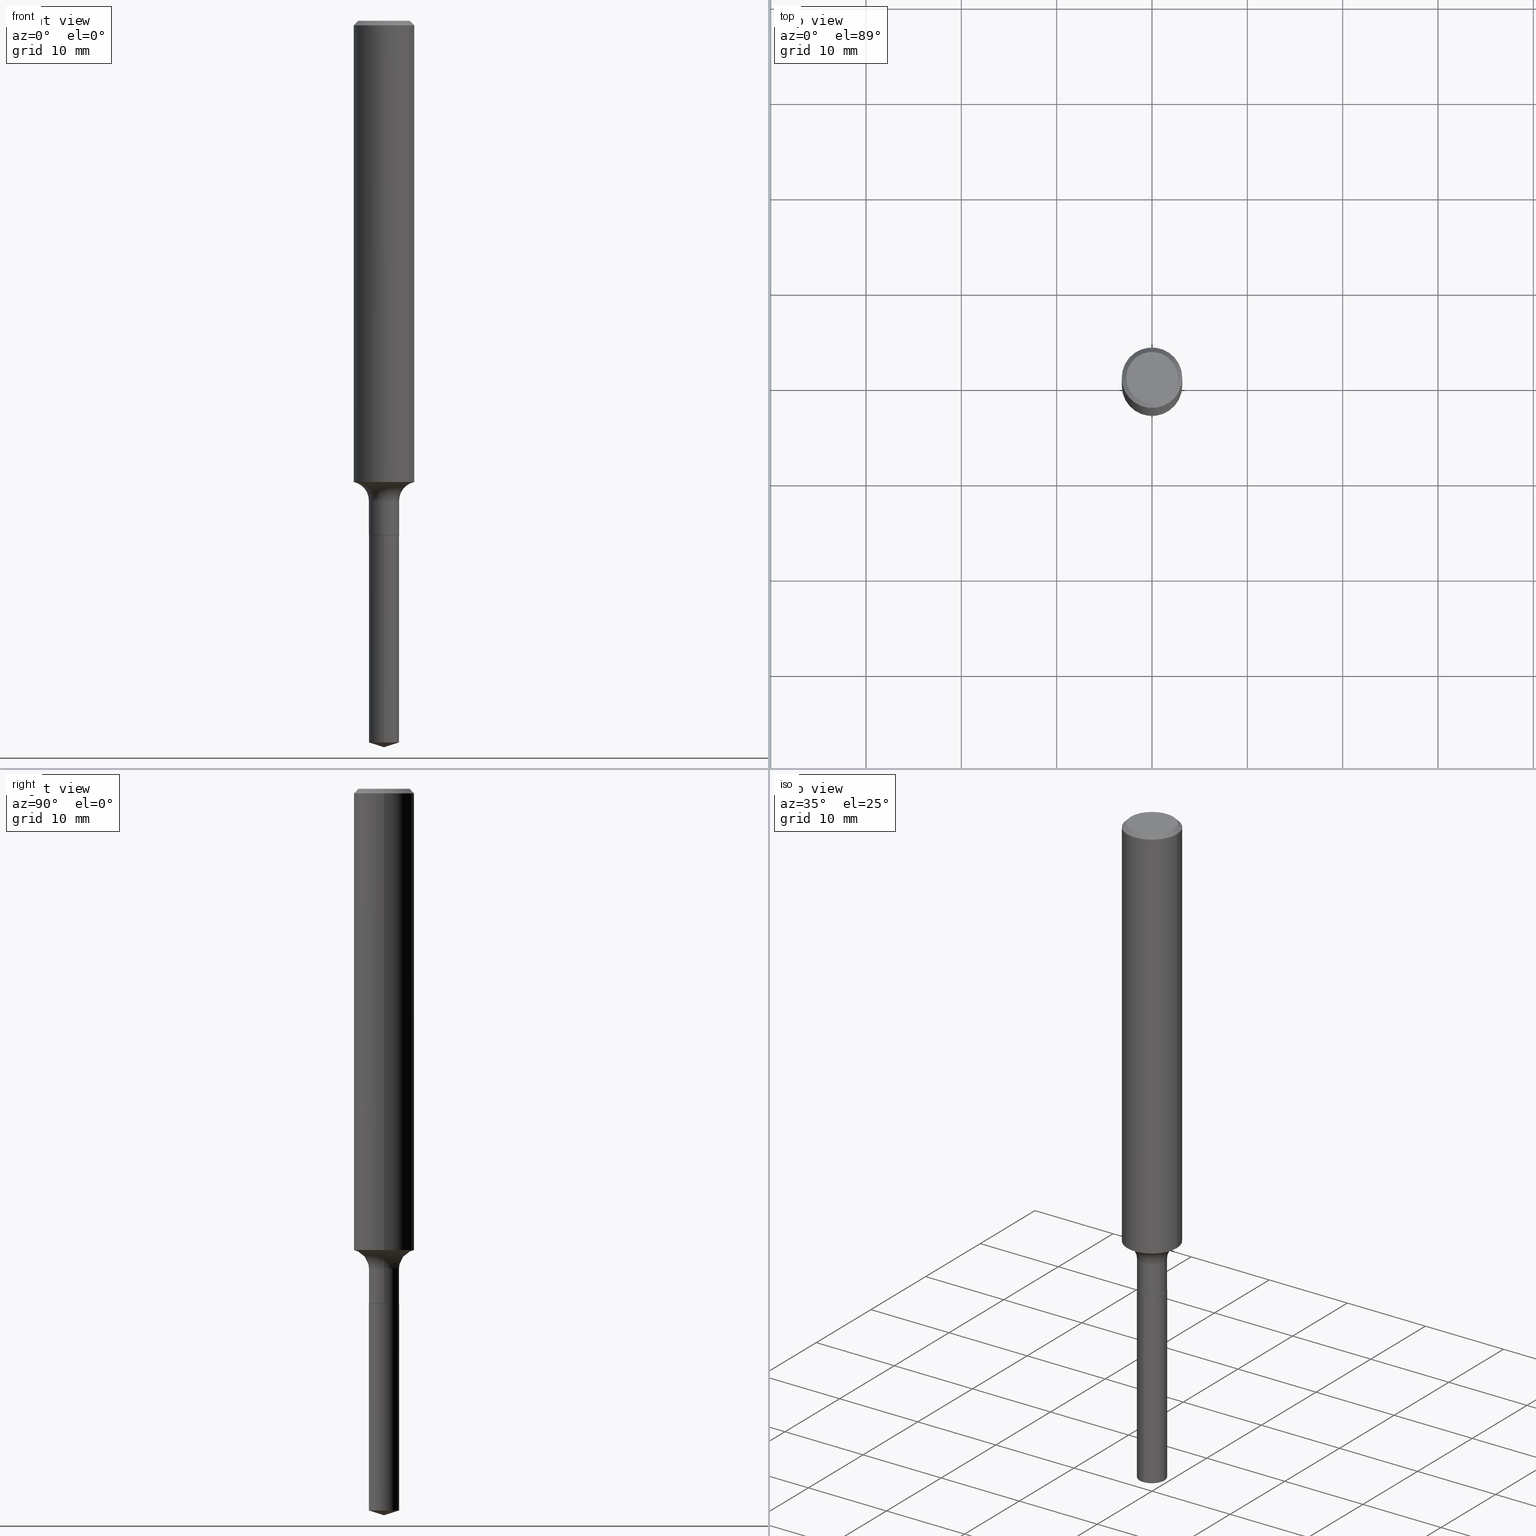
[diagram: canonical four-view strip — front | top / right | iso, engineering-drawing reading convention]
A machine part, canonical four-view strip (front | top / right | iso — engineering-drawing reading convention). The complete STEP part file that produces these views, byte-faithful:
ISO-10303-21;
HEADER;
FILE_DESCRIPTION (( 'STEP AP203' ),
    '1' );
FILE_NAME ('51580.STEP',
    '2024-04-19T13:02:12',
    ( '' ),
    ( '' ),
    'SwSTEP 2.0',
    'SolidWorks 2023',
    '' );
FILE_SCHEMA (( 'CONFIG_CONTROL_DESIGN' ));
ENDSEC;

DATA;
#1 = ADVANCED_FACE ( 'NONE', ( #32 ), #400, .T. ) ;
#2 = CARTESIAN_POINT ( 'NONE',  ( -0.1250000000000000833, -5.762240128063631559E-15, -1.904755575742896889 ) ) ;
#3 = APPROVAL_PERSON_ORGANIZATION ( #45, #385, #248 ) ;
#4 = CARTESIAN_POINT ( 'NONE',  ( 0.1250000000000000000, -9.230275248247509846E-16, -0.01875000000000014155 ) ) ;
#5 = ORIENTED_EDGE ( 'NONE', *, *, #309, .F. ) ;
#6 = CARTESIAN_POINT ( 'NONE',  ( -0.06249999999999993061, 4.440892098500621231E-16, -3.074334431409312610E-30 ) ) ;
#7 = ORIENTED_EDGE ( 'NONE', *, *, #344, .F. ) ;
#8 = EDGE_CURVE ( 'NONE', #247, #123, #18, .T. ) ;
#9 = CARTESIAN_POINT ( 'NONE',  ( -0.06249999999999995143, -6.723398256594090548E-15, -2.124500000000000721 ) ) ;
#10 = EDGE_LOOP ( 'NONE', ( #350, #40, #87, #262 ) ) ;
#11 = ADVANCED_FACE ( 'NONE', ( #441 ), #183, .T. ) ;
#12 = AXIS2_PLACEMENT_3D ( 'NONE', #220, #25, #57 ) ;
#13 = CARTESIAN_POINT ( 'NONE',  ( 0.1250000000000000000, -9.383356098140928781E-16, -0.01875000000000014155 ) ) ;
#14 = EDGE_LOOP ( 'NONE', ( #138, #166, #284, #460 ) ) ;
#15 = ORIENTED_EDGE ( 'NONE', *, *, #179, .T. ) ;
#16 = APPROVAL_STATUS ( 'not_yet_approved' ) ;
#17 = ADVANCED_FACE ( 'NONE', ( #226 ), #487, .T. ) ;
#18 = CIRCLE ( 'NONE', #435, 0.06249999999999991673 ) ;
#19 = AXIS2_PLACEMENT_3D ( 'NONE', #260, #293, #324 ) ;
#20 = DIRECTION ( 'NONE',  ( 1.000000000000000000, -6.982962677686266711E-15, 0.000000000000000000 ) ) ;
#21 = FACE_OUTER_BOUND ( 'NONE', #131, .T. ) ;
#22 = DIRECTION ( 'NONE',  ( 1.000000000000000000, -6.982962677686268288E-15, 0.000000000000000000 ) ) ;
#23 = CONICAL_SURFACE ( 'NONE', #317, 0.1250000000000000000, 0.7853981633974453924 ) ;
#24 = AXIS2_PLACEMENT_3D ( 'NONE', #440, #484, #446 ) ;
#25 = DIRECTION ( 'NONE',  ( 2.432315252734916185E-29, -3.510317976037629950E-15, -1.000000000000000000 ) ) ;
#26 = LINE ( 'NONE', #398, #202 ) ;
#27 = ADVANCED_FACE ( 'NONE', ( #190 ), #149, .T. ) ;
#28 = PERSON ( 'UNSPECIFIED', 'UNSPECIFIED', 'UNSPECIFIED', ('UNSPECIFIED'), ('UNSPECIFIED'), ('UNSPECIFIED') ) ;
#29 = CARTESIAN_POINT ( 'NONE',  ( 7.276965430951519486E-29, -1.042175113617306376E-14, -2.980293825695064402 ) ) ;
#30 = ORIENTED_EDGE ( 'NONE', *, *, #8, .F. ) ;
#31 = CIRCLE ( 'NONE', #436, 0.06249999999999995143 ) ;
#32 = FACE_OUTER_BOUND ( 'NONE', #288, .T. ) ;
#33 = LENGTH_MEASURE_WITH_UNIT ( LENGTH_MEASURE( 0.02539999999999999897 ), #124 );
#34 = CARTESIAN_POINT ( 'NONE',  ( 5.196621213143416389E-29, -7.419397845041685201E-15, -2.125000000000000444 ) ) ;
#35 = DIRECTION ( 'NONE',  ( -6.982962677686266711E-15, -1.000000000000000000, 0.000000000000000000 ) ) ;
#36 = DIRECTION ( 'NONE',  ( 1.000000000000000000, -6.982962677686269077E-15, 0.000000000000000000 ) ) ;
#37 = ORIENTED_EDGE ( 'NONE', *, *, #198, .T. ) ;
#38 = AXIS2_PLACEMENT_3D ( 'NONE', #310, #303, #453 ) ;
#39 = CONICAL_SURFACE ( 'NONE', #354, 124.8659371009182735, 1.265363707695899009 ) ;
#40 = ORIENTED_EDGE ( 'NONE', *, *, #264, .T. ) ;
#41 = PERSON_AND_ORGANIZATION ( #28, #445 ) ;
#42 = LINE ( 'NONE', #165, #72 ) ;
#43 = ORIENTED_EDGE ( 'NONE', *, *, #301, .T. ) ;
#44 = ADVANCED_FACE ( 'NONE', ( #485 ), #23, .T. ) ;
#45 = PERSON_AND_ORGANIZATION ( #28, #445 ) ;
#46 = ADVANCED_FACE ( 'NONE', ( #399 ), #141, .F. ) ;
#47 = DIRECTION ( 'NONE',  ( -6.982962677686265922E-15, -1.000000000000000000, 4.370956789862820361E-15 ) ) ;
#48 = ORIENTED_EDGE ( 'NONE', *, *, #85, .T. ) ;
#49 = APPROVAL_ROLE ( '' ) ;
#50 = CC_DESIGN_PERSON_AND_ORGANIZATION_ASSIGNMENT ( #281, #475, ( #332 ) ) ;
#51 = AXIS2_PLACEMENT_3D ( 'NONE', #459, #199, #340 ) ;
#52 = ADVANCED_FACE ( 'NONE', ( #492 ), #363, .T. ) ;
#53 = AXIS2_PLACEMENT_3D ( 'NONE', #329, #298, #302 ) ;
#54 = ORIENTED_EDGE ( 'NONE', *, *, #287, .T. ) ;
#55 = APPROVAL_DATE_TIME ( #277, #385 ) ;
#56 = EDGE_LOOP ( 'NONE', ( #404, #135, #352 ) ) ;
#57 = DIRECTION ( 'NONE',  ( 6.982962677686265922E-15, 1.000000000000000000, -3.510317976037629950E-15 ) ) ;
#58 = CIRCLE ( 'NONE', #299, 0.1250000000000000000 ) ;
#59 = AXIS2_PLACEMENT_3D ( 'NONE', #295, #358, #481 ) ;
#60 = EDGE_CURVE ( 'NONE', #490, #133, #450, .T. ) ;
#61 = CARTESIAN_POINT ( 'NONE',  ( 0.1404999999999999027, -7.898429084730959980E-15, -1.981200000000000072 ) ) ;
#62 = DIRECTION ( 'NONE',  ( 1.000000000000000000, -6.982962677686261977E-15, 0.000000000000000000 ) ) ;
#63 = CYLINDRICAL_SURFACE ( 'NONE', #429, 0.06250000000000002776 ) ;
#64 = AXIS2_PLACEMENT_3D ( 'NONE', #121, #272, #157 ) ;
#65 = LOCAL_TIME ( 9, 2, 12.00000000000000000, #418 ) ;
#66 = FACE_OUTER_BOUND ( 'NONE', #240, .T. ) ;
#67 = DIRECTION ( 'NONE',  ( -2.445468806185136597E-29, 3.491481338843145583E-15, 1.000000000000000000 ) ) ;
#68 = CARTESIAN_POINT ( 'NONE',  ( 5.196621213143416389E-29, -7.419397845041685201E-15, -2.125000000000000444 ) ) ;
#69 = DIRECTION ( 'NONE',  ( 1.000000000000000000, -6.982962677686272233E-15, 0.000000000000000000 ) ) ;
#70 = PERSON_AND_ORGANIZATION_ROLE ( 'design_owner' ) ;
#71 = DIRECTION ( 'NONE',  ( -1.000000000000000000, 6.982962677686266711E-15, 0.000000000000000000 ) ) ;
#72 = VECTOR ( 'NONE', #465, 39.37007874015748143 ) ;
#73 = CONICAL_SURFACE ( 'NONE', #53, 0.06200000000000001343, 0.7853981633974824739 ) ;
#74 = EDGE_CURVE ( 'NONE', #251, #273, #75, .T. ) ;
#75 = LINE ( 'NONE', #230, #394 ) ;
#76 = DIRECTION ( 'NONE',  ( 1.000000000000000000, -6.982962677686266711E-15, 4.876176775795935793E-29 ) ) ;
#77 = ORIENTED_EDGE ( 'NONE', *, *, #256, .F. ) ;
#78 = DESIGN_CONTEXT ( 'detailed design', #357, 'design' ) ;
#79 = ADVANCED_BREP_SHAPE_REPRESENTATION ( '51580', ( #478, #308, #177 ), #401 ) ;
#80 = DIRECTION ( 'NONE',  ( 1.000000000000000000, -6.982962677686266711E-15, 0.000000000000000000 ) ) ;
#81 = ORIENTED_EDGE ( 'NONE', *, *, #264, .F. ) ;
#82 = DATE_TIME_ROLE ( 'creation_date' ) ;
#83 = VECTOR ( 'NONE', #432, 39.37007874015748854 ) ;
#84 = CC_DESIGN_APPROVAL ( #373, ( #332 ) ) ;
#85 = EDGE_CURVE ( 'NONE', #457, #103, #192, .T. ) ;
#86 = CARTESIAN_POINT ( 'NONE',  ( 4.658020343886464601E-29, -6.650418547763756792E-15, -1.904755575742896889 ) ) ;
#87 = ORIENTED_EDGE ( 'NONE', *, *, #335, .T. ) ;
#88 = DIRECTION ( 'NONE',  ( -2.445468806185136877E-29, 3.491481338843145188E-15, 1.000000000000000000 ) ) ;
#89 = ORIENTED_EDGE ( 'NONE', *, *, #106, .T. ) ;
#90 = APPROVAL_ROLE ( '' ) ;
#91 = ORIENTED_EDGE ( 'NONE', *, *, #270, .F. ) ;
#92 = CALENDAR_DATE ( 2024, 19, 4 ) ;
#93 = VECTOR ( 'NONE', #491, 39.37007874015748143 ) ;
#94 = VERTEX_POINT ( 'NONE', #300 ) ;
#95 = CALENDAR_DATE ( 2024, 19, 4 ) ;
#96 = ORIENTED_EDGE ( 'NONE', *, *, #301, .F. ) ;
#97 = LINE ( 'NONE', #6, #462 ) ;
#98 = CC_DESIGN_PERSON_AND_ORGANIZATION_ASSIGNMENT ( #112, #70, ( #153 ) ) ;
#99 = DIRECTION ( 'NONE',  ( -2.445468806185136597E-29, 3.491481338843145583E-15, 1.000000000000000000 ) ) ;
#100 = AXIS2_PLACEMENT_3D ( 'NONE', #269, #265, #408 ) ;
#101 = CIRCLE ( 'NONE', #24, 0.1062499999999999972 ) ;
#102 = CARTESIAN_POINT ( 'NONE',  ( 5.196621213143416389E-29, -7.419397845041685201E-15, -2.125000000000000444 ) ) ;
#103 = VERTEX_POINT ( 'NONE', #337 ) ;
#104 = DIRECTION ( 'NONE',  ( -2.432315252734916185E-29, 3.510317976037630345E-15, 1.000000000000000000 ) ) ;
#105 = CARTESIAN_POINT ( 'NONE',  ( -8.843554596177323907E-28, 1.277105690455171332E-13, 36.37007874015748143 ) ) ;
#106 = EDGE_CURVE ( 'NONE', #214, #273, #58, .T. ) ;
#107 = DIRECTION ( 'NONE',  ( -2.432315252734916185E-29, 3.510317976037629950E-15, 1.000000000000000000 ) ) ;
#108 = AXIS2_PLACEMENT_3D ( 'NONE', #203, #125, #47 ) ;
#109 = DIRECTION ( 'NONE',  ( 2.445468806185136597E-29, -3.491481338843145583E-15, -1.000000000000000000 ) ) ;
#110 = CARTESIAN_POINT ( 'NONE',  ( 4.585254011597165626E-31, -6.546527510330947764E-17, -0.01875000000000014155 ) ) ;
#111 = DIRECTION ( 'NONE',  ( -2.432315252734916185E-29, 3.510317976037630345E-15, 1.000000000000000000 ) ) ;
#112 = PERSON_AND_ORGANIZATION ( #28, #445 ) ;
#113 = APPROVAL ( #207, 'UNSPECIFIED' ) ;
#114 = DIRECTION ( 'NONE',  ( 2.445468806185136597E-29, -3.491481338843145583E-15, -1.000000000000000000 ) ) ;
#115 = EDGE_CURVE ( 'NONE', #103, #457, #167, .T. ) ;
#116 = CARTESIAN_POINT ( 'NONE',  ( -4.364351673553397525E-16, -0.06250000000000743849, -2.125000000000000000 ) ) ;
#117 = CARTESIAN_POINT ( 'NONE',  ( -0.06200000000000001343, -6.978861348870422695E-15, -2.125000000000000444 ) ) ;
#118 = CIRCLE ( 'NONE', #386, 0.1250000000000000000 ) ;
#119 = CC_DESIGN_APPROVAL ( #113, ( #339 ) ) ;
#120 = PLANE ( 'NONE',  #137 ) ;
#121 = CARTESIAN_POINT ( 'NONE',  ( 5.196621213143416389E-29, -7.419397845041685201E-15, -2.125000000000000444 ) ) ;
#122 = ORIENTED_EDGE ( 'NONE', *, *, #477, .T. ) ;
#123 = VERTEX_POINT ( 'NONE', #208 ) ;
#124 =( LENGTH_UNIT ( ) NAMED_UNIT ( * ) SI_UNIT ( $, .METRE. ) );
#125 = DIRECTION ( 'NONE',  ( -2.432315252734916185E-29, 3.510317976037630345E-15, 1.000000000000000000 ) ) ;
#126 = EDGE_LOOP ( 'NONE', ( #77, #81 ) ) ;
#127 = DATE_AND_TIME ( #136, #142 ) ;
#128 = DIRECTION ( 'NONE',  ( -2.445468806185136597E-29, 3.491481338843145583E-15, 1.000000000000000000 ) ) ;
#129 = ORIENTED_EDGE ( 'NONE', *, *, #194, .F. ) ;
#130 = COORDINATED_UNIVERSAL_TIME_OFFSET ( 5, 0, .BEHIND. ) ;
#131 = EDGE_LOOP ( 'NONE', ( #48, #343 ) ) ;
#132 = DIRECTION ( 'NONE',  ( 1.000000000000000000, -6.982962677686272233E-15, 0.000000000000000000 ) ) ;
#133 = VERTEX_POINT ( 'NONE', #9 ) ;
#134 = ORIENTED_EDGE ( 'NONE', *, *, #8, .T. ) ;
#135 = ORIENTED_EDGE ( 'NONE', *, *, #403, .T. ) ;
#136 = CALENDAR_DATE ( 2024, 19, 4 ) ;
#137 = AXIS2_PLACEMENT_3D ( 'NONE', #68, #154, #414 ) ;
#138 = ORIENTED_EDGE ( 'NONE', *, *, #170, .F. ) ;
#139 = LINE ( 'NONE', #146, #483 ) ;
#140 = CARTESIAN_POINT ( 'NONE',  ( -4.364351673553398018E-16, -0.06250000000000743849, -2.125000000000000000 ) ) ;
#141 = TOROIDAL_SURFACE ( 'NONE', #176, 0.1404999999999999027, 0.07799999999999995826 ) ;
#142 = LOCAL_TIME ( 9, 2, 12.00000000000000000, #242 ) ;
#143 = CC_DESIGN_PERSON_AND_ORGANIZATION_ASSIGNMENT ( #238, #351, ( #339 ) ) ;
#144 = DIRECTION ( 'NONE',  ( -2.445468806185136597E-29, 3.491481338843145583E-15, 1.000000000000000000 ) ) ;
#145 = DIRECTION ( 'NONE',  ( -6.982962677686265922E-15, -1.000000000000000000, 4.370956789862820361E-15 ) ) ;
#146 = CARTESIAN_POINT ( 'NONE',  ( 0.06200000000000001343, -7.852341531058233864E-15, -2.125000000000000444 ) ) ;
#147 = DIRECTION ( 'NONE',  ( -2.445468806185136597E-29, 3.491481338843145583E-15, 1.000000000000000000 ) ) ;
#148 = CARTESIAN_POINT ( 'NONE',  ( 0.06200000000000001343, -7.852341531058233864E-15, -2.125000000000000444 ) ) ;
#149 = CONICAL_SURFACE ( 'NONE', #444, 0.06200000000000001343, 0.7853981633974824739 ) ;
#150 = DIRECTION ( 'NONE',  ( -2.445468806185136597E-29, 3.491481338843145583E-15, 1.000000000000000000 ) ) ;
#151 = AXIS2_PLACEMENT_3D ( 'NONE', #449, #156, #370 ) ;
#152 =( NAMED_UNIT ( * ) PLANE_ANGLE_UNIT ( ) SI_UNIT ( $, .RADIAN. ) );
#153 = PRODUCT ( '51580', '51580', '', ( #447 ) ) ;
#154 = DIRECTION ( 'NONE',  ( -2.438088387897960049E-29, 3.491481338843145188E-15, 1.000000000000000000 ) ) ;
#155 = DIRECTION ( 'NONE',  ( 1.000000000000000000, -6.982962677686268288E-15, 4.883557194083113462E-29 ) ) ;
#156 = DIRECTION ( 'NONE',  ( -2.445468806185136597E-29, 3.491481338843145583E-15, 1.000000000000000000 ) ) ;
#157 = DIRECTION ( 'NONE',  ( 1.000000000000000000, -6.982962677686269077E-15, 0.000000000000000000 ) ) ;
#158 = AXIS2_PLACEMENT_3D ( 'NONE', #29, #451, #35 ) ;
#159 = CARTESIAN_POINT ( 'NONE',  ( 0.1250000000000000833, -7.523288882474540130E-15, -1.904755575742896889 ) ) ;
#160 = ORIENTED_EDGE ( 'NONE', *, *, #256, .T. ) ;
#161 = DIRECTION ( 'NONE',  ( -6.982962677686265922E-15, -1.000000000000000000, 4.370956789862819572E-15 ) ) ;
#162 = LINE ( 'NONE', #342, #285 ) ;
#163 = VERTEX_POINT ( 'NONE', #169 ) ;
#164 = APPROVAL_DATE_TIME ( #391, #113 ) ;
#165 = CARTESIAN_POINT ( 'NONE',  ( 4.440892098501146810E-16, 0.06249999999999260314, -2.125000000000000888 ) ) ;
#166 = ORIENTED_EDGE ( 'NONE', *, *, #331, .T. ) ;
#167 = CIRCLE ( 'NONE', #108, 0.06250000000000001388 ) ;
#168 = AXIS2_PLACEMENT_3D ( 'NONE', #364, #333, #161 ) ;
#169 = CARTESIAN_POINT ( 'NONE',  ( 0.06249999999999995143, -7.854087271727656156E-15, -2.124500000000000721 ) ) ;
#170 = EDGE_CURVE ( 'NONE', #306, #103, #42, .T. ) ;
#171 = ORIENTED_EDGE ( 'NONE', *, *, #74, .T. ) ;
#172 = EDGE_LOOP ( 'NONE', ( #388, #37, #390 ) ) ;
#173 = APPROVAL_STATUS ( 'not_yet_approved' ) ;
#174 = DIMENSIONAL_EXPONENTS ( 1.000000000000000000, 0.000000000000000000, 0.000000000000000000, 0.000000000000000000, 0.000000000000000000, 0.000000000000000000, 0.000000000000000000 ) ;
#175 = APPROVAL_DATE_TIME ( #424, #373 ) ;
#176 = AXIS2_PLACEMENT_3D ( 'NONE', #328, #147, #155 ) ;
#177 = AXIS2_PLACEMENT_3D ( 'NONE', #407, #412, #338 ) ;
#178 = APPLICATION_CONTEXT ( 'configuration controlled 3d designs of mechanical parts and assemblies' ) ;
#179 = EDGE_CURVE ( 'NONE', #133, #163, #224, .T. ) ;
#180 = DIRECTION ( 'NONE',  ( -2.445468806185136877E-29, 3.491481338843145188E-15, 1.000000000000000000 ) ) ;
#181 = CARTESIAN_POINT ( 'NONE',  ( 0.1062499999999999972, -8.259777185439880671E-16, -2.602374448187577153E-17 ) ) ;
#182 = DIRECTION ( 'NONE',  ( -2.445468806185136597E-29, 3.491481338843145583E-15, 1.000000000000000000 ) ) ;
#183 = CONICAL_SURFACE ( 'NONE', #330, 124.8659371009182735, 1.265363707695899009 ) ;
#184 = CC_DESIGN_PERSON_AND_ORGANIZATION_ASSIGNMENT ( #473, #318, ( #339 ) ) ;
#185 = CC_DESIGN_SECURITY_CLASSIFICATION ( #332, ( #339 ) ) ;
#186 = DIRECTION ( 'NONE',  ( -6.982962677686265922E-15, -1.000000000000000000, 4.370956789862819572E-15 ) ) ;
#187 = DIRECTION ( 'NONE',  ( -1.000000000000000000, 6.982962677686266711E-15, 0.000000000000000000 ) ) ;
#188 = ADVANCED_FACE ( 'NONE', ( #279 ), #393, .T. ) ;
#189 = DIRECTION ( 'NONE',  ( -6.659769872151647866E-15, -0.9537169507482289310, 0.3007057995042668463 ) ) ;
#190 = FACE_OUTER_BOUND ( 'NONE', #347, .T. ) ;
#191 = CARTESIAN_POINT ( 'NONE',  ( 0.06249999999999993061, -4.364351673553911764E-16, 3.047610484872456367E-30 ) ) ;
#192 = CIRCLE ( 'NONE', #261, 0.06250000000000001388 ) ;
#193 = CIRCLE ( 'NONE', #377, 0.07799999999999995826 ) ;
#194 = EDGE_CURVE ( 'NONE', #133, #247, #97, .T. ) ;
#195 = CARTESIAN_POINT ( 'NONE',  ( 5.196621213143416389E-29, -7.419397845041685201E-15, -2.125000000000000444 ) ) ;
#196 = CC_DESIGN_DATE_AND_TIME_ASSIGNMENT ( #389, #211, ( #332 ) ) ;
#197 = DIRECTION ( 'NONE',  ( -2.445468806185136597E-29, 3.491481338843145583E-15, 1.000000000000000000 ) ) ;
#198 = EDGE_CURVE ( 'NONE', #213, #306, #252, .T. ) ;
#199 = DIRECTION ( 'NONE',  ( -2.445468806185136597E-29, 3.491481338843145583E-15, 1.000000000000000000 ) ) ;
#200 = VECTOR ( 'NONE', #346, 39.37007874015748143 ) ;
#201 = VERTEX_POINT ( 'NONE', #159 ) ;
#202 = VECTOR ( 'NONE', #189, 39.37007874015748854 ) ;
#203 = CARTESIAN_POINT ( 'NONE',  ( 5.196621213143416389E-29, -7.419397845041685201E-15, -2.125000000000000444 ) ) ;
#204 = ORIENTED_EDGE ( 'NONE', *, *, #366, .F. ) ;
#205 = CALENDAR_DATE ( 2024, 19, 4 ) ;
#206 = EDGE_LOOP ( 'NONE', ( #241, #253, #316, #470 ) ) ;
#207 = APPROVAL_STATUS ( 'not_yet_approved' ) ;
#208 = CARTESIAN_POINT ( 'NONE',  ( 0.06249999999999991673, -7.353757995871431934E-15, -1.981200000000000072 ) ) ;
#209 = ORIENTED_EDGE ( 'NONE', *, *, #464, .T. ) ;
#210 = CIRCLE ( 'NONE', #64, 0.06200000000000001343 ) ;
#211 = DATE_TIME_ROLE ( 'classification_date' ) ;
#212 = AXIS2_PLACEMENT_3D ( 'NONE', #402, #479, #255 ) ;
#213 = VERTEX_POINT ( 'NONE', #282 ) ;
#214 = VERTEX_POINT ( 'NONE', #13 ) ;
#215 = ORIENTED_EDGE ( 'NONE', *, *, #85, .F. ) ;
#216 = CALENDAR_DATE ( 2024, 19, 4 ) ;
#217 = EDGE_CURVE ( 'NONE', #123, #247, #353, .T. ) ;
#218 = EDGE_LOOP ( 'NONE', ( #129, #15, #209, #30 ) ) ;
#219 = CIRCLE ( 'NONE', #51, 0.1250000000000001943 ) ;
#220 = CARTESIAN_POINT ( 'NONE',  ( 5.196621213143416389E-29, -7.419397845041685201E-15, -2.125000000000000444 ) ) ;
#221 = PLANE ( 'NONE',  #12 ) ;
#222 = DIRECTION ( 'NONE',  ( -2.432315252734916185E-29, 3.510317976037630345E-15, 1.000000000000000000 ) ) ;
#223 = DIRECTION ( 'NONE',  ( -1.000000000000000000, 7.105427357601001859E-15, 0.000000000000000000 ) ) ;
#224 = CIRCLE ( 'NONE', #38, 0.06249999999999995143 ) ;
#225 = EDGE_CURVE ( 'NONE', #280, #214, #420, .T. ) ;
#226 = FACE_OUTER_BOUND ( 'NONE', #341, .T. ) ;
#227 = DIRECTION ( 'NONE',  ( 1.000000000000000000, -6.982962677686269077E-15, 0.000000000000000000 ) ) ;
#228 = AXIS2_PLACEMENT_3D ( 'NONE', #397, #294, #223 ) ;
#229 = CYLINDRICAL_SURFACE ( 'NONE', #168, 0.06250000000000002776 ) ;
#230 = CARTESIAN_POINT ( 'NONE',  ( -0.1250000000000001110, 8.881784197001260212E-16, -6.148668862818637832E-30 ) ) ;
#231 = FACE_OUTER_BOUND ( 'NONE', #10, .T. ) ;
#232 = CARTESIAN_POINT ( 'NONE',  ( 5.196621213143416389E-29, -7.419397845041685201E-15, -2.125000000000000444 ) ) ;
#233 = ORIENTED_EDGE ( 'NONE', *, *, #270, .T. ) ;
#234 = DIRECTION ( 'NONE',  ( 1.000000000000000000, -6.982962677686267499E-15, 0.000000000000000000 ) ) ;
#235 = AXIS2_PLACEMENT_3D ( 'NONE', #456, #416, #76 ) ;
#236 = ORIENTED_EDGE ( 'NONE', *, *, #309, .T. ) ;
#237 = LOCAL_TIME ( 9, 2, 12.00000000000000000, #315 ) ;
#238 = PERSON_AND_ORGANIZATION ( #28, #445 ) ;
#239 = PRODUCT_DEFINITION ( 'UNKNOWN', '', #339, #78 ) ;
#240 = EDGE_LOOP ( 'NONE', ( #122, #283, #215, #392 ) ) ;
#241 = ORIENTED_EDGE ( 'NONE', *, *, #366, .T. ) ;
#242 = COORDINATED_UNIVERSAL_TIME_OFFSET ( 5, 0, .BEHIND. ) ;
#243 = ORIENTED_EDGE ( 'NONE', *, *, #74, .F. ) ;
#244 = CIRCLE ( 'NONE', #228, 0.07799999999999995826 ) ;
#245 = VECTOR ( 'NONE', #180, 39.37007874015748143 ) ;
#246 = ORIENTED_EDGE ( 'NONE', *, *, #250, .T. ) ;
#247 = VERTEX_POINT ( 'NONE', #305 ) ;
#248 = APPROVAL_ROLE ( '' ) ;
#249 = PRODUCT_RELATED_PRODUCT_CATEGORY ( 'detail', '', ( #153 ) ) ;
#250 = EDGE_CURVE ( 'NONE', #201, #251, #322, .T. ) ;
#251 = VERTEX_POINT ( 'NONE', #2 ) ;
#252 = LINE ( 'NONE', #348, #83 ) ;
#253 = ORIENTED_EDGE ( 'NONE', *, *, #194, .T. ) ;
#254 = CIRCLE ( 'NONE', #268, 0.1062499999999999972 ) ;
#255 = DIRECTION ( 'NONE',  ( -6.982962677686266711E-15, -1.000000000000000000, 0.000000000000000000 ) ) ;
#256 = EDGE_CURVE ( 'NONE', #381, #490, #210, .T. ) ;
#257 = FACE_OUTER_BOUND ( 'NONE', #218, .T. ) ;
#258 = DIRECTION ( 'NONE',  ( -6.982962677686265922E-15, -1.000000000000000000, 3.500519750498614502E-15 ) ) ;
#259 = DIRECTION ( 'NONE',  ( -6.982962677686265922E-15, -1.000000000000000000, 3.500519750498614502E-15 ) ) ;
#260 = CARTESIAN_POINT ( 'NONE',  ( 0.000000000000000000, 0.000000000000000000, 0.000000000000000000 ) ) ;
#261 = AXIS2_PLACEMENT_3D ( 'NONE', #34, #325, #145 ) ;
#262 = ORIENTED_EDGE ( 'NONE', *, *, #179, .F. ) ;
#263 = LINE ( 'NONE', #486, #245 ) ;
#264 = EDGE_CURVE ( 'NONE', #490, #381, #482, .T. ) ;
#265 = DIRECTION ( 'NONE',  ( -2.445468806185136597E-29, 3.491481338843145583E-15, 1.000000000000000000 ) ) ;
#266 = CARTESIAN_POINT ( 'NONE',  ( 4.844962798813993275E-29, -6.917322828516041053E-15, -1.981200000000000072 ) ) ;
#267 = FACE_OUTER_BOUND ( 'NONE', #126, .T. ) ;
#268 = AXIS2_PLACEMENT_3D ( 'NONE', #434, #144, #442 ) ;
#269 = CARTESIAN_POINT ( 'NONE',  ( 0.000000000000000000, 0.000000000000000000, 0.000000000000000000 ) ) ;
#270 = EDGE_CURVE ( 'NONE', #251, #201, #219, .T. ) ;
#271 = CARTESIAN_POINT ( 'NONE',  ( -0.06200000000000001343, -6.976212121696313071E-15, -2.125000000000000444 ) ) ;
#272 = DIRECTION ( 'NONE',  ( -2.445468806185136597E-29, 3.491481338843145583E-15, 1.000000000000000000 ) ) ;
#273 = VERTEX_POINT ( 'NONE', #379 ) ;
#274 = ORIENTED_EDGE ( 'NONE', *, *, #334, .F. ) ;
#275 = AXIS2_PLACEMENT_3D ( 'NONE', #448, #114, #187 ) ;
#276 = ORIENTED_EDGE ( 'NONE', *, *, #106, .F. ) ;
#277 = DATE_AND_TIME ( #95, #237 ) ;
#278 = EDGE_CURVE ( 'NONE', #314, #273, #162, .T. ) ;
#279 = FACE_OUTER_BOUND ( 'NONE', #206, .T. ) ;
#280 = VERTEX_POINT ( 'NONE', #181 ) ;
#281 = PERSON_AND_ORGANIZATION ( #28, #445 ) ;
#282 = CARTESIAN_POINT ( 'NONE',  ( 7.296945758204749958E-29, -1.053095392811289222E-14, -3.000000000000000444 ) ) ;
#283 = ORIENTED_EDGE ( 'NONE', *, *, #170, .T. ) ;
#284 = ORIENTED_EDGE ( 'NONE', *, *, #415, .T. ) ;
#285 = VECTOR ( 'NONE', #355, 39.37007874015748143 ) ;
#286 = APPROVAL_PERSON_ORGANIZATION ( #382, #373, #49 ) ;
#287 = EDGE_CURVE ( 'NONE', #273, #214, #118, .T. ) ;
#288 = EDGE_LOOP ( 'NONE', ( #425, #7, #417, #54 ) ) ;
#289 = ORIENTED_EDGE ( 'NONE', *, *, #334, .T. ) ;
#290 = DIRECTION ( 'NONE',  ( 0.7071067811865715536, -2.468850131082509496E-15, 0.7071067811865232589 ) ) ;
#291 = DIRECTION ( 'NONE',  ( -6.982962677686266711E-15, -1.000000000000000000, 3.491481338843145583E-15 ) ) ;
#292 = EDGE_CURVE ( 'NONE', #251, #247, #244, .T. ) ;
#293 = DIRECTION ( 'NONE',  ( -2.445468806185136597E-29, 3.491481338843145583E-15, 1.000000000000000000 ) ) ;
#294 = DIRECTION ( 'NONE',  ( 7.105427357601001859E-15, 1.000000000000000000, -3.491481338843145583E-15 ) ) ;
#295 = CARTESIAN_POINT ( 'NONE',  ( 3.182012767528659158E-46, -4.543070911265533518E-32, -1.301187224094062675E-17 ) ) ;
#296 = CC_DESIGN_APPROVAL ( #385, ( #239 ) ) ;
#297 = DIRECTION ( 'NONE',  ( 1.000000000000000000, -6.982962677686266711E-15, 4.876176775795935232E-29 ) ) ;
#298 = DIRECTION ( 'NONE',  ( -2.445468806185136597E-29, 3.491481338843145583E-15, 1.000000000000000000 ) ) ;
#299 = AXIS2_PLACEMENT_3D ( 'NONE', #422, #128, #80 ) ;
#300 = CARTESIAN_POINT ( 'NONE',  ( -4.364351673553189956E-16, -0.06250000000001044997, -2.980293825695064402 ) ) ;
#301 = EDGE_CURVE ( 'NONE', #201, #123, #193, .T. ) ;
#302 = DIRECTION ( 'NONE',  ( 1.000000000000000000, -6.982962677686269077E-15, 0.000000000000000000 ) ) ;
#303 = DIRECTION ( 'NONE',  ( -2.445468806185136597E-29, 3.491481338843145583E-15, 1.000000000000000000 ) ) ;
#304 = ORIENTED_EDGE ( 'NONE', *, *, #278, .F. ) ;
#305 = CARTESIAN_POINT ( 'NONE',  ( -0.06249999999999991673, -6.723398256594090548E-15, -1.981200000000000072 ) ) ;
#306 = VERTEX_POINT ( 'NONE', #362 ) ;
#307 = COORDINATED_UNIVERSAL_TIME_OFFSET ( 5, 0, .BEHIND. ) ;
#308 = MANIFOLD_SOLID_BREP ( 'Body-Move/Copy2[2]', #376 ) ;
#309 = EDGE_CURVE ( 'NONE', #201, #214, #263, .T. ) ;
#310 = CARTESIAN_POINT ( 'NONE',  ( 5.195398478740323588E-29, -7.417652104372264487E-15, -2.124500000000000721 ) ) ;
#311 = ORIENTED_EDGE ( 'NONE', *, *, #344, .T. ) ;
#312 = PERSON_AND_ORGANIZATION ( #28, #445 ) ;
#313 = CARTESIAN_POINT ( 'NONE',  ( 4.844962798813993275E-29, -6.917322828516041053E-15, -1.981200000000000072 ) ) ;
#314 = VERTEX_POINT ( 'NONE', #320 ) ;
#315 = COORDINATED_UNIVERSAL_TIME_OFFSET ( 5, 0, .BEHIND. ) ;
#316 = ORIENTED_EDGE ( 'NONE', *, *, #217, .F. ) ;
#317 = AXIS2_PLACEMENT_3D ( 'NONE', #443, #109, #71 ) ;
#318 = PERSON_AND_ORGANIZATION_ROLE ( 'creator' ) ;
#319 = TOROIDAL_SURFACE ( 'NONE', #151, 0.1404999999999999027, 0.07799999999999995826 ) ;
#320 = CARTESIAN_POINT ( 'NONE',  ( -0.1062499999999999972, 7.746724220558198188E-16, -2.602374448188655674E-17 ) ) ;
#321 = PLANE ( 'NONE',  #59 ) ;
#322 = CIRCLE ( 'NONE', #409, 0.1250000000000001943 ) ;
#323 = LOCAL_TIME ( 9, 2, 12.00000000000000000, #130 ) ;
#324 = DIRECTION ( 'NONE',  ( 1.000000000000000000, -6.982962677686266711E-15, 4.876176775795935793E-29 ) ) ;
#325 = DIRECTION ( 'NONE',  ( -2.432315252734916185E-29, 3.510317976037630345E-15, 1.000000000000000000 ) ) ;
#326 = FACE_OUTER_BOUND ( 'NONE', #384, .T. ) ;
#327 = FACE_OUTER_BOUND ( 'NONE', #56, .T. ) ;
#328 = CARTESIAN_POINT ( 'NONE',  ( 4.844962798813993275E-29, -6.917322828516041053E-15, -1.981200000000000072 ) ) ;
#329 = CARTESIAN_POINT ( 'NONE',  ( 5.196621213143416389E-29, -7.419397845041685201E-15, -2.125000000000000444 ) ) ;
#330 = AXIS2_PLACEMENT_3D ( 'NONE', #105, #111, #259 ) ;
#331 = EDGE_CURVE ( 'NONE', #306, #94, #474, .T. ) ;
#332 = SECURITY_CLASSIFICATION ( '', '', #469 ) ;
#333 = DIRECTION ( 'NONE',  ( -2.432315252734916185E-29, 3.510317976037630345E-15, 1.000000000000000000 ) ) ;
#334 = EDGE_CURVE ( 'NONE', #280, #314, #101, .T. ) ;
#335 = EDGE_CURVE ( 'NONE', #381, #163, #139, .T. ) ;
#336 =( NAMED_UNIT ( * ) SI_UNIT ( $, .STERADIAN. ) SOLID_ANGLE_UNIT ( ) );
#337 = CARTESIAN_POINT ( 'NONE',  ( 4.440892098501357830E-16, 0.06249999999999260314, -2.125000000000000888 ) ) ;
#338 = DIRECTION ( 'NONE',  ( 1.000000000000000000, 0.000000000000000000, 0.000000000000000000 ) ) ;
#339 = PRODUCT_DEFINITION_FORMATION_WITH_SPECIFIED_SOURCE ( 'ANY', '', #153, .NOT_KNOWN. ) ;
#340 = DIRECTION ( 'NONE',  ( 1.000000000000000000, -6.982962677686267499E-15, 0.000000000000000000 ) ) ;
#341 = EDGE_LOOP ( 'NONE', ( #243, #233, #236, #423 ) ) ;
#342 = CARTESIAN_POINT ( 'NONE',  ( -0.1250000000000000000, 8.074050596074738982E-16, -0.01875000000000014155 ) ) ;
#343 = ORIENTED_EDGE ( 'NONE', *, *, #115, .T. ) ;
#344 = EDGE_CURVE ( 'NONE', #314, #280, #254, .T. ) ;
#345 = SHAPE_DEFINITION_REPRESENTATION ( #365, #79 ) ;
#346 = DIRECTION ( 'NONE',  ( 0.7071067811865454633, -7.319954787623248157E-15, -0.7071067811865495711 ) ) ;
#347 = EDGE_LOOP ( 'NONE', ( #160, #359, #204, #383 ) ) ;
#348 = CARTESIAN_POINT ( 'NONE',  ( 7.353338560201433337E-29, -1.045089822003633158E-14, -3.000000000000000444 ) ) ;
#349 = AXIS2_PLACEMENT_3D ( 'NONE', #313, #467, #132 ) ;
#350 = ORIENTED_EDGE ( 'NONE', *, *, #60, .F. ) ;
#351 = PERSON_AND_ORGANIZATION_ROLE ( 'design_supplier' ) ;
#352 = ORIENTED_EDGE ( 'NONE', *, *, #331, .F. ) ;
#353 = CIRCLE ( 'NONE', #349, 0.06249999999999991673 ) ;
#354 = AXIS2_PLACEMENT_3D ( 'NONE', #437, #104, #258 ) ;
#355 = DIRECTION ( 'NONE',  ( -0.7071067811865454633, 2.468850131082235367E-15, -0.7071067811865495711 ) ) ;
#356 = FACE_OUTER_BOUND ( 'NONE', #466, .T. ) ;
#357 = APPLICATION_CONTEXT ( 'configuration controlled 3d designs of mechanical parts and assemblies' ) ;
#358 = DIRECTION ( 'NONE',  ( 2.438088387897960049E-29, -3.491481338843145188E-15, -1.000000000000000000 ) ) ;
#359 = ORIENTED_EDGE ( 'NONE', *, *, #60, .T. ) ;
#360 = CIRCLE ( 'NONE', #158, 0.06250000000000002776 ) ;
#361 = LINE ( 'NONE', #140, #463 ) ;
#362 = CARTESIAN_POINT ( 'NONE',  ( 4.440892098501355858E-16, 0.06249999999998961248, -2.980293825695064402 ) ) ;
#363 = CYLINDRICAL_SURFACE ( 'NONE', #452, 0.1250000000000001110 ) ;
#364 = CARTESIAN_POINT ( 'NONE',  ( 5.196621213143416389E-29, -7.419397845041685201E-15, -2.125000000000000444 ) ) ;
#365 = PRODUCT_DEFINITION_SHAPE ( 'NONE', 'NONE',  #239 ) ;
#366 = EDGE_CURVE ( 'NONE', #163, #133, #31, .T. ) ;
#367 = FACE_OUTER_BOUND ( 'NONE', #14, .T. ) ;
#368 = VECTOR ( 'NONE', #411, 39.37007874015748854 ) ;
#369 = ORIENTED_EDGE ( 'NONE', *, *, #250, .F. ) ;
#370 = DIRECTION ( 'NONE',  ( 1.000000000000000000, -6.982962677686268288E-15, 4.883557194083113462E-29 ) ) ;
#371 = ADVANCED_FACE ( 'NONE', ( #257 ), #488, .T. ) ;
#372 = DIRECTION ( 'NONE',  ( -2.445468806185136877E-29, 3.491481338843145188E-15, 1.000000000000000000 ) ) ;
#373 = APPROVAL ( #173, 'UNSPECIFIED' ) ;
#374 = DIRECTION ( 'NONE',  ( -2.445468806185136597E-29, 3.491481338843145583E-15, 1.000000000000000000 ) ) ;
#375 = ORIENTED_EDGE ( 'NONE', *, *, #225, .T. ) ;
#376 = CLOSED_SHELL ( 'NONE', ( #27, #44, #52, #433, #188, #371, #46, #17, #1, #395, #476, #472 ) ) ;
#377 = AXIS2_PLACEMENT_3D ( 'NONE', #61, #291, #62 ) ;
#378 = ADVANCED_FACE ( 'NONE', ( #327 ), #39, .T. ) ;
#379 = CARTESIAN_POINT ( 'NONE',  ( -0.1250000000000000000, -2.469763491733405764E-15, -0.01875000000000014155 ) ) ;
#380 = ADVANCED_FACE ( 'NONE', ( #21 ), #221, .F. ) ;
#381 = VERTEX_POINT ( 'NONE', #148 ) ;
#382 = PERSON_AND_ORGANIZATION ( #28, #445 ) ;
#383 = ORIENTED_EDGE ( 'NONE', *, *, #335, .F. ) ;
#384 = EDGE_LOOP ( 'NONE', ( #91, #431, #134, #96 ) ) ;
#385 = APPROVAL ( #16, 'UNSPECIFIED' ) ;
#386 = AXIS2_PLACEMENT_3D ( 'NONE', #110, #182, #20 ) ;
#387 = LOCAL_TIME ( 9, 2, 12.00000000000000000, #307 ) ;
#388 = ORIENTED_EDGE ( 'NONE', *, *, #403, .F. ) ;
#389 = DATE_AND_TIME ( #216, #387 ) ;
#390 = ORIENTED_EDGE ( 'NONE', *, *, #477, .F. ) ;
#391 = DATE_AND_TIME ( #92, #323 ) ;
#392 = ORIENTED_EDGE ( 'NONE', *, *, #415, .F. ) ;
#393 = CYLINDRICAL_SURFACE ( 'NONE', #235, 0.06249999999999993061 ) ;
#394 = VECTOR ( 'NONE', #372, 39.37007874015748143 ) ;
#395 = ADVANCED_FACE ( 'NONE', ( #356 ), #321, .F. ) ;
#396 = CARTESIAN_POINT ( 'NONE',  ( 5.195398478740323588E-29, -7.417652104372264487E-15, -2.124500000000000721 ) ) ;
#397 = CARTESIAN_POINT ( 'NONE',  ( -0.1404999999999999027, -5.919010284773100589E-15, -1.981200000000000072 ) ) ;
#398 = CARTESIAN_POINT ( 'NONE',  ( 7.296945758204749958E-29, -1.053095392811289064E-14, -3.000000000000000444 ) ) ;
#399 = FACE_OUTER_BOUND ( 'NONE', #426, .T. ) ;
#400 = CONICAL_SURFACE ( 'NONE', #275, 0.1250000000000000000, 0.7853981633974453924 ) ;
#401 =( GEOMETRIC_REPRESENTATION_CONTEXT ( 3 ) GLOBAL_UNCERTAINTY_ASSIGNED_CONTEXT ( ( #454 ) ) GLOBAL_UNIT_ASSIGNED_CONTEXT ( ( #405, #152, #336 ) ) REPRESENTATION_CONTEXT ( 'NONE', 'WORKASPACE' ) );
#402 = CARTESIAN_POINT ( 'NONE',  ( 7.276965430951519486E-29, -1.042175113617306376E-14, -2.980293825695064402 ) ) ;
#403 = EDGE_CURVE ( 'NONE', #213, #94, #26, .T. ) ;
#404 = ORIENTED_EDGE ( 'NONE', *, *, #198, .F. ) ;
#405 =( CONVERSION_BASED_UNIT ( 'INCH', #33 ) LENGTH_UNIT ( ) NAMED_UNIT ( #174 ) );
#406 = DIRECTION ( 'NONE',  ( -2.445468806185136597E-29, 3.491481338843145583E-15, 1.000000000000000000 ) ) ;
#407 = CARTESIAN_POINT ( 'NONE',  ( 0.000000000000000000, 0.000000000000000000, 0.000000000000000000 ) ) ;
#408 = DIRECTION ( 'NONE',  ( 1.000000000000000000, -6.982962677686266711E-15, 4.876176775795935232E-29 ) ) ;
#409 = AXIS2_PLACEMENT_3D ( 'NONE', #86, #197, #234 ) ;
#410 = APPROVAL_PERSON_ORGANIZATION ( #312, #113, #90 ) ;
#411 = DIRECTION ( 'NONE',  ( -0.7071067811865715536, 7.493145998870439357E-15, 0.7071067811865232589 ) ) ;
#412 = DIRECTION ( 'NONE',  ( 0.000000000000000000, 0.000000000000000000, 1.000000000000000000 ) ) ;
#413 = EDGE_LOOP ( 'NONE', ( #246, #171, #276, #5 ) ) ;
#414 = DIRECTION ( 'NONE',  ( 1.000000000000000000, -6.982962677686265922E-15, 4.876176775795935793E-29 ) ) ;
#415 = EDGE_CURVE ( 'NONE', #94, #457, #361, .T. ) ;
#416 = DIRECTION ( 'NONE',  ( -2.445468806185136597E-29, 3.491481338843145583E-15, 1.000000000000000000 ) ) ;
#417 = ORIENTED_EDGE ( 'NONE', *, *, #278, .T. ) ;
#418 = COORDINATED_UNIVERSAL_TIME_OFFSET ( 5, 0, .BEHIND. ) ;
#419 = AXIS2_PLACEMENT_3D ( 'NONE', #232, #374, #36 ) ;
#420 = LINE ( 'NONE', #4, #200 ) ;
#421 = ORIENTED_EDGE ( 'NONE', *, *, #292, .F. ) ;
#422 = CARTESIAN_POINT ( 'NONE',  ( 4.585254011597165626E-31, -6.546527510330947764E-17, -0.01875000000000014155 ) ) ;
#423 = ORIENTED_EDGE ( 'NONE', *, *, #287, .F. ) ;
#424 = DATE_AND_TIME ( #205, #65 ) ;
#425 = ORIENTED_EDGE ( 'NONE', *, *, #225, .F. ) ;
#426 = EDGE_LOOP ( 'NONE', ( #421, #369, #43, #480 ) ) ;
#427 = APPLICATION_PROTOCOL_DEFINITION ( 'international standard', 'config_control_design', 1994, #357 ) ;
#428 = CLOSED_SHELL ( 'NONE', ( #430, #11, #378, #439, #380 ) ) ;
#429 = AXIS2_PLACEMENT_3D ( 'NONE', #102, #222, #186 ) ;
#430 = ADVANCED_FACE ( 'NONE', ( #66 ), #63, .T. ) ;
#431 = ORIENTED_EDGE ( 'NONE', *, *, #292, .T. ) ;
#432 = DIRECTION ( 'NONE',  ( 6.776566513254271548E-15, 0.9537169507482309294, 0.3007057995042601295 ) ) ;
#433 = ADVANCED_FACE ( 'NONE', ( #326 ), #319, .F. ) ;
#434 = CARTESIAN_POINT ( 'NONE',  ( 6.364025535057318316E-46, -9.086141822531067035E-32, -2.602374448188125350E-17 ) ) ;
#435 = AXIS2_PLACEMENT_3D ( 'NONE', #266, #67, #69 ) ;
#436 = AXIS2_PLACEMENT_3D ( 'NONE', #396, #99, #22 ) ;
#437 = CARTESIAN_POINT ( 'NONE',  ( -8.843554596177323907E-28, 1.277105690455171332E-13, 36.37007874015748143 ) ) ;
#438 = CC_DESIGN_DATE_AND_TIME_ASSIGNMENT ( #127, #82, ( #239 ) ) ;
#439 = ADVANCED_FACE ( 'NONE', ( #367 ), #229, .T. ) ;
#440 = CARTESIAN_POINT ( 'NONE',  ( 6.364025535057318316E-46, -9.086141822531067035E-32, -2.602374448188125350E-17 ) ) ;
#441 = FACE_OUTER_BOUND ( 'NONE', #172, .T. ) ;
#442 = DIRECTION ( 'NONE',  ( 1.000000000000000000, -6.982962677686266711E-15, 4.877714189860772023E-29 ) ) ;
#443 = CARTESIAN_POINT ( 'NONE',  ( 4.585254011597165626E-31, -6.546527510330947764E-17, -0.01875000000000014155 ) ) ;
#444 = AXIS2_PLACEMENT_3D ( 'NONE', #195, #406, #227 ) ;
#445 = ORGANIZATION ( 'UNSPECIFIED', 'UNSPECIFIED', '' ) ;
#446 = DIRECTION ( 'NONE',  ( 1.000000000000000000, -6.982962677686266711E-15, 4.877714189860772023E-29 ) ) ;
#447 = MECHANICAL_CONTEXT ( 'NONE', #178, 'mechanical' ) ;
#448 = CARTESIAN_POINT ( 'NONE',  ( 4.585254011597165626E-31, -6.546527510330947764E-17, -0.01875000000000014155 ) ) ;
#449 = CARTESIAN_POINT ( 'NONE',  ( 4.844962798813993275E-29, -6.917322828516041053E-15, -1.981200000000000072 ) ) ;
#450 = LINE ( 'NONE', #117, #368 ) ;
#451 = DIRECTION ( 'NONE',  ( -2.432315252734916185E-29, 3.510317976037630345E-15, 1.000000000000000000 ) ) ;
#452 = AXIS2_PLACEMENT_3D ( 'NONE', #489, #150, #297 ) ;
#453 = DIRECTION ( 'NONE',  ( 1.000000000000000000, -6.982962677686268288E-15, 0.000000000000000000 ) ) ;
#454 = UNCERTAINTY_MEASURE_WITH_UNIT (LENGTH_MEASURE( 1.000000000000000082E-05 ), #405, 'distance_accuracy_value', 'NONE');
#455 = APPLICATION_PROTOCOL_DEFINITION ( 'international standard', 'config_control_design', 1994, #178 ) ;
#456 = CARTESIAN_POINT ( 'NONE',  ( 0.000000000000000000, 0.000000000000000000, 0.000000000000000000 ) ) ;
#457 = VERTEX_POINT ( 'NONE', #116 ) ;
#458 = LINE ( 'NONE', #191, #93 ) ;
#459 = CARTESIAN_POINT ( 'NONE',  ( 4.658020343886464601E-29, -6.650418547763756792E-15, -1.904755575742896889 ) ) ;
#460 = ORIENTED_EDGE ( 'NONE', *, *, #115, .F. ) ;
#461 = PERSON_AND_ORGANIZATION_ROLE ( 'creator' ) ;
#462 = VECTOR ( 'NONE', #88, 39.37007874015748143 ) ;
#463 = VECTOR ( 'NONE', #107, 39.37007874015748143 ) ;
#464 = EDGE_CURVE ( 'NONE', #163, #123, #458, .T. ) ;
#465 = DIRECTION ( 'NONE',  ( -2.432315252734916185E-29, 3.510317976037629950E-15, 1.000000000000000000 ) ) ;
#466 = EDGE_LOOP ( 'NONE', ( #311, #289 ) ) ;
#467 = DIRECTION ( 'NONE',  ( -2.445468806185136597E-29, 3.491481338843145583E-15, 1.000000000000000000 ) ) ;
#468 = EDGE_LOOP ( 'NONE', ( #274, #375, #89, #304 ) ) ;
#469 = SECURITY_CLASSIFICATION_LEVEL ( 'unclassified' ) ;
#470 = ORIENTED_EDGE ( 'NONE', *, *, #464, .F. ) ;
#471 = CC_DESIGN_PERSON_AND_ORGANIZATION_ASSIGNMENT ( #41, #461, ( #239 ) ) ;
#472 = ADVANCED_FACE ( 'NONE', ( #231 ), #73, .T. ) ;
#473 = PERSON_AND_ORGANIZATION ( #28, #445 ) ;
#474 = CIRCLE ( 'NONE', #212, 0.06250000000000002776 ) ;
#475 = PERSON_AND_ORGANIZATION_ROLE ( 'classification_officer' ) ;
#476 = ADVANCED_FACE ( 'NONE', ( #267 ), #120, .F. ) ;
#477 = EDGE_CURVE ( 'NONE', #94, #306, #360, .T. ) ;
#478 = MANIFOLD_SOLID_BREP ( 'Body-Move/Copy2[1]', #428 ) ;
#479 = DIRECTION ( 'NONE',  ( -2.432315252734916185E-29, 3.510317976037630345E-15, 1.000000000000000000 ) ) ;
#480 = ORIENTED_EDGE ( 'NONE', *, *, #217, .T. ) ;
#481 = DIRECTION ( 'NONE',  ( -1.000000000000000000, 6.982962677686265922E-15, -4.876176775795935793E-29 ) ) ;
#482 = CIRCLE ( 'NONE', #419, 0.06200000000000001343 ) ;
#483 = VECTOR ( 'NONE', #290, 39.37007874015748854 ) ;
#484 = DIRECTION ( 'NONE',  ( -2.445468806185136597E-29, 3.491481338843145583E-15, 1.000000000000000000 ) ) ;
#485 = FACE_OUTER_BOUND ( 'NONE', #468, .T. ) ;
#486 = CARTESIAN_POINT ( 'NONE',  ( 0.1250000000000001110, -8.728703347107841277E-16, 6.095220969744924646E-30 ) ) ;
#487 = CYLINDRICAL_SURFACE ( 'NONE', #100, 0.1250000000000001110 ) ;
#488 = CYLINDRICAL_SURFACE ( 'NONE', #19, 0.06249999999999993061 ) ;
#489 = CARTESIAN_POINT ( 'NONE',  ( 0.000000000000000000, 0.000000000000000000, 0.000000000000000000 ) ) ;
#490 = VERTEX_POINT ( 'NONE', #271 ) ;
#491 = DIRECTION ( 'NONE',  ( -2.445468806185136877E-29, 3.491481338843145188E-15, 1.000000000000000000 ) ) ;
#492 = FACE_OUTER_BOUND ( 'NONE', #413, .T. ) ;
ENDSEC;
END-ISO-10303-21;
